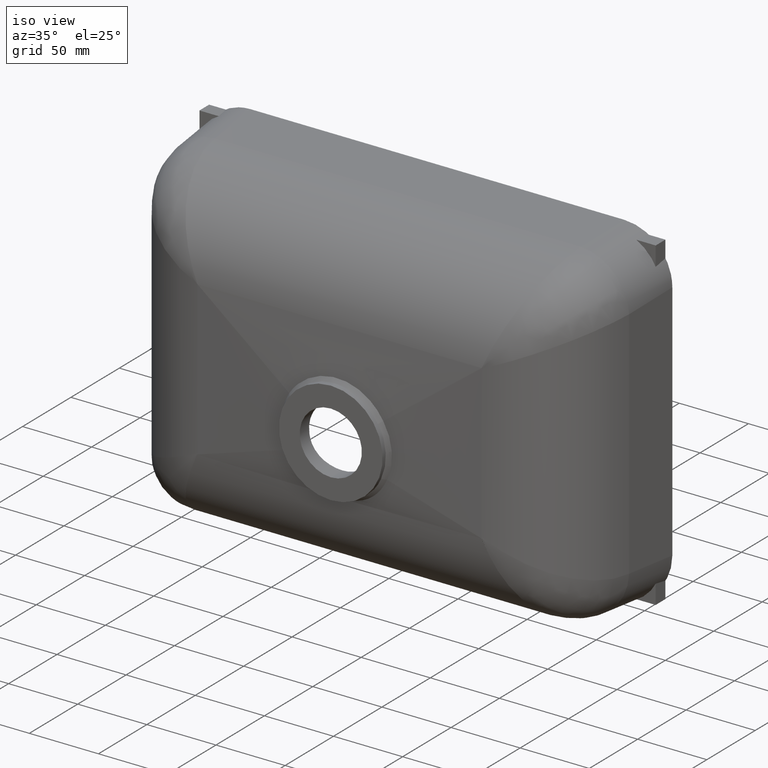
[diagram: clean part render]
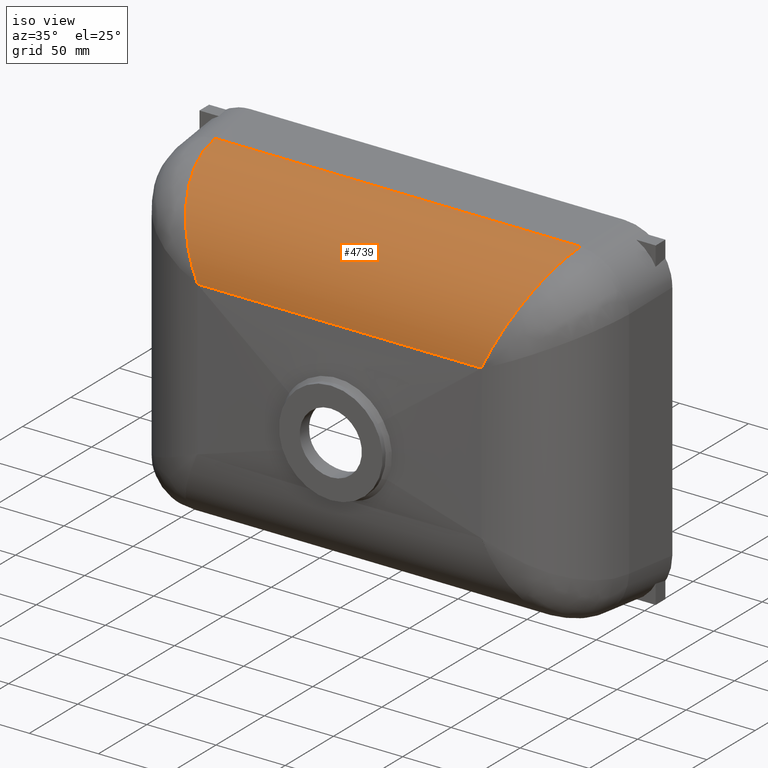
[diagram: same view with one face highlighted and labeled with its STEP entity id]
A machine part, iso view. The second image highlights one B-rep face of the part: STEP entity #4739.
In plain terms, the highlighted cylindrical surface (partial cylindrical patch) has radius 65 mm, axis along (-1, 0, 0).
Its self-contained STEP definition (entity closure, byte-faithful):
#139 = AXIS2_PLACEMENT_3D ( 'NONE', #3258, #2581, #5120 ) ;
#140 = CARTESIAN_POINT ( 'NONE',  ( -85.50414699277264700, -100.9977585988920100, 55.40717596110246000 ) ) ;
#162 = CARTESIAN_POINT ( 'NONE',  ( 102.6049731503894400, -100.9979520701322300, 55.38280401024906800 ) ) ;
#391 = CARTESIAN_POINT ( 'NONE',  ( 102.6049731503894400, -100.9979520701322300, 55.38280401024906800 ) ) ;
#699 = CARTESIAN_POINT ( 'NONE',  ( -17.10084970429919700, -100.9968500709163800, 55.50673932755066900 ) ) ;
#777 = CARTESIAN_POINT ( 'NONE',  ( -132.2940854384533200, -40.52388708518758200, 119.7092139677210100 ) ) ;
#981 = VERTEX_POINT ( 'NONE', #1756 ) ;
#1084 = CARTESIAN_POINT ( 'NONE',  ( -102.6049731503890400, -100.9979520701322900, 55.38280401024862000 ) ) ;
#1154 = FACE_OUTER_BOUND ( 'NONE', #3437, .T. ) ;
#1277 = CARTESIAN_POINT ( 'NONE',  ( -34.20167973682481500, -100.9970429725361900, 55.48735697136057600 ) ) ;
#1420 = VERTEX_POINT ( 'NONE', #6493 ) ;
#1756 = CARTESIAN_POINT ( 'NONE',  ( -102.6049731503890400, -100.9979520701322900, 55.38280401024862000 ) ) ;
#1830 = CARTESIAN_POINT ( 'NONE',  ( 68.40332755981103200, -100.9975083416531200, 55.43652994497980300 ) ) ;
#2014 = B_SPLINE_CURVE_WITH_KNOTS ( 'NONE', 3,
 ( #2948, #5735, #1830, #5158, #4595, #699, #1277, #4050, #140, #3502 ),
 .UNSPECIFIED., .F., .F.,
 ( 4, 2, 2, 2, 4 ),
 ( 0.2873950210000106900, 0.3386975512312749800, 0.3900000814625392800, 0.4413026116938035800, 0.4926051419250678200 ),
 .UNSPECIFIED. ) ;
#2038 =( BOUNDED_CURVE ( )  B_SPLINE_CURVE ( 3, ( #391, #6893, #6970, #3704 ),
 .UNSPECIFIED., .F., .F. ) 
 B_SPLINE_CURVE_WITH_KNOTS ( ( 4, 4 ),
 ( 4.720327088319919500, 6.213530733451016800 ),
 .UNSPECIFIED. ) 
 CURVE ( )  GEOMETRIC_REPRESENTATION_ITEM ( )  RATIONAL_B_SPLINE_CURVE ( ( 1.000000000000000000, 0.8226673128292212300, 0.8226673128292212300, 1.000000000000000000 ) ) 
 REPRESENTATION_ITEM ( '' )  );
#2221 = ORIENTED_EDGE ( 'NONE', *, *, #4034, .T. ) ;
#2300 = EDGE_CURVE ( 'NONE', #4543, #981, #2014, .T. ) ;
#2363 = VECTOR ( 'NONE', #5138, 1000.000000000000000 ) ;
#2447 = EDGE_CURVE ( 'NONE', #1420, #6807, #3525, .T. ) ;
#2491 = ORIENTED_EDGE ( 'NONE', *, *, #2447, .F. ) ;
#2581 = DIRECTION ( 'NONE',  ( -1.000000000000000000, 0.0000000000000000000, 4.476705744456275500E-017 ) ) ;
#2948 = CARTESIAN_POINT ( 'NONE',  ( 102.6049731503894400, -100.9979520701322300, 55.38280401024906800 ) ) ;
#3179 = CYLINDRICAL_SURFACE ( 'NONE', #139, 65.00000000000000000 ) ;
#3258 = CARTESIAN_POINT ( 'NONE',  ( 155.0000000000000300, -35.99999999999999300, 54.86683241336665200 ) ) ;
#3437 = EDGE_LOOP ( 'NONE', ( #4961, #4394, #2491, #2221 ) ) ;
#3502 = CARTESIAN_POINT ( 'NONE',  ( -102.6049731503890400, -100.9979520701322900, 55.38280401024862000 ) ) ;
#3525 = LINE ( 'NONE', #6275, #2363 ) ;
#3704 = CARTESIAN_POINT ( 'NONE',  ( 132.2940854384534100, -40.52388708518760300, 119.7092139677210000 ) ) ;
#3990 = EDGE_CURVE ( 'NONE', #4543, #6807, #2038, .T. ) ;
#4034 = EDGE_CURVE ( 'NONE', #1420, #981, #4781, .T. ) ;
#4050 = CARTESIAN_POINT ( 'NONE',  ( -68.40332755981563700, -100.9975083416531000, 55.43652994497977500 ) ) ;
#4134 = CARTESIAN_POINT ( 'NONE',  ( -131.1449562692127100, -76.21073184104940900, 117.2194341010329300 ) ) ;
#4394 = ORIENTED_EDGE ( 'NONE', *, *, #3990, .T. ) ;
#4425 = CARTESIAN_POINT ( 'NONE',  ( -119.1153416141054500, -100.7139804171027900, 91.15526901496724600 ) ) ;
#4543 = VERTEX_POINT ( 'NONE', #162 ) ;
#4595 = CARTESIAN_POINT ( 'NONE',  ( 17.10084970429928600, -100.9968500709163500, 55.50673932755066900 ) ) ;
#4739 = ADVANCED_FACE ( 'NONE', ( #1154 ), #3179, .T. ) ;
#4781 =( BOUNDED_CURVE ( )  B_SPLINE_CURVE ( 3, ( #777, #4134, #4425, #1084 ),
 .UNSPECIFIED., .F., .F. ) 
 B_SPLINE_CURVE_WITH_KNOTS ( ( 4, 4 ),
 ( 3.211247227318362500, 4.704450872449468700 ),
 .UNSPECIFIED. ) 
 CURVE ( )  GEOMETRIC_REPRESENTATION_ITEM ( )  RATIONAL_B_SPLINE_CURVE ( ( 1.000000000000000000, 0.8226673128292191200, 0.8226673128292191200, 1.000000000000000000 ) ) 
 REPRESENTATION_ITEM ( '' )  );
#4903 = CARTESIAN_POINT ( 'NONE',  ( 132.2940854384534100, -40.52388708518760300, 119.7092139677210000 ) ) ;
#4961 = ORIENTED_EDGE ( 'NONE', *, *, #2300, .F. ) ;
#5120 = DIRECTION ( 'NONE',  ( 0.0000000000000000000, 0.0000000000000000000, 1.000000000000000000 ) ) ;
#5138 = DIRECTION ( 'NONE',  ( 1.000000000000000000, -0.0000000000000000000, -4.476705744456275500E-017 ) ) ;
#5158 = CARTESIAN_POINT ( 'NONE',  ( 34.20167973681506600, -100.9970429725361900, 55.48735697136059000 ) ) ;
#5735 = CARTESIAN_POINT ( 'NONE',  ( 85.50414699277070000, -100.9977585988920100, 55.40717596110329200 ) ) ;
#6275 = CARTESIAN_POINT ( 'NONE',  ( 155.0000000000000300, -40.52388708518758200, 119.7092139677210000 ) ) ;
#6493 = CARTESIAN_POINT ( 'NONE',  ( -132.2940854384533200, -40.52388708518758200, 119.7092139677210100 ) ) ;
#6807 = VERTEX_POINT ( 'NONE', #4903 ) ;
#6893 = CARTESIAN_POINT ( 'NONE',  ( 119.1153416141056500, -100.7139804171024600, 91.15526901496750200 ) ) ;
#6970 = CARTESIAN_POINT ( 'NONE',  ( 131.1449562692127400, -76.21073184104915300, 117.2194341010329300 ) ) ;